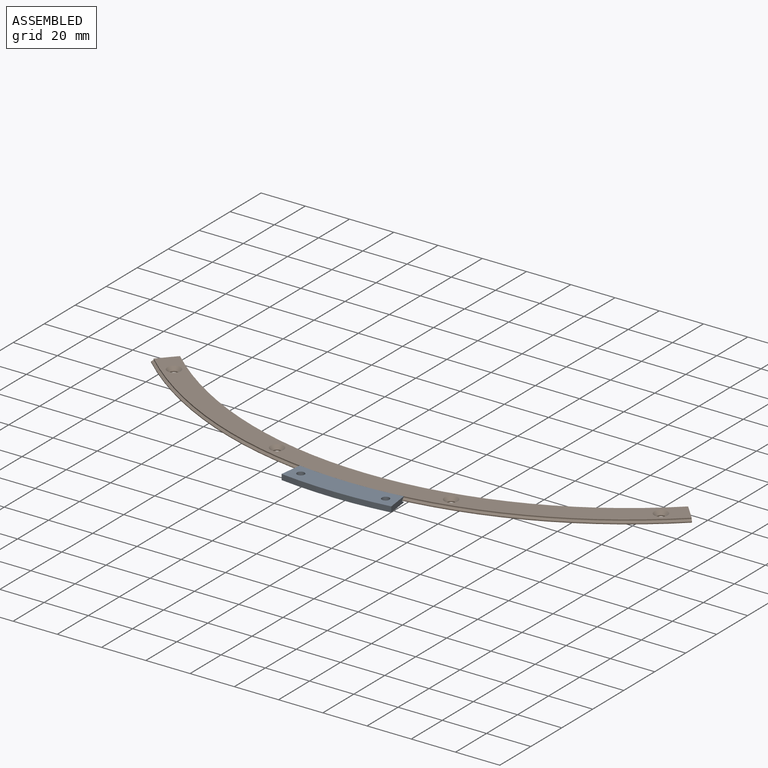
[diagram: assembled view]
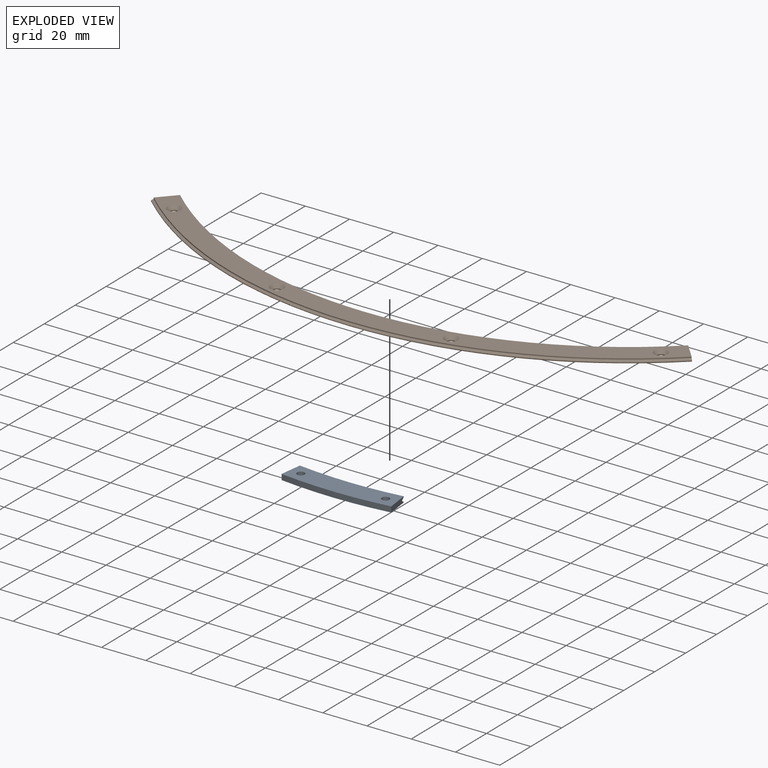
[diagram: exploded view]
GUIDED TOUR — FREECAD ASSEMBLY "Scale"

This assembly has 2 components, labeled P0..P1 below (a component is one placed body or linked part; the same part can appear more than once), held together by 0 modeled joints plus 1 derived contact edge. A joint is a constraint between two components; its type names the relative motion it leaves free:
  CONTACT — a derived adjacency edge — the two components touch in the source model (clearance under 2% of the assembly's diagonal); it is measured from the geometry, not a modeled constraint.
Axis/direction vectors are unit vectors and 'through' points are millimeter coordinates, both in the assembly's world frame.

MATES
  1. CONTACT "contact_0_1": P0 <-> P1, contact direction (0.000, 0.000, 1.000) through (0.00, -180.00, 2.00) mm (derived from contact, not a modeled constraint)

ASSEMBLY ORDER
  1. P0 — the base component [order verified]
  2. P1 [order verified]
Order-tag legend:
  [order verified] — this step's position reverses a verified removal order: the component was checked to insert without passing through the ones already placed.

Of the 2 components, 2 carry a construction recipe — the FreeCAD feature program (sketches with constraints, then the solid features that consume them) that regenerates the part from scratch, quoted from this document or from the linked companion document it references; the rest are supplied as boundary geometry only. The tour below walks the components in assembly order: each is shown spotlighted twice — in the assembled view, then in the exploded view, where a leader line traces a displaced component back to its assembled socket (components that stay in place when exploded have no leader line; saturated green if recipe-attached, orange if geometry-only; every other component desaturated gray) — followed by its recipe or geometry summary and the mates that hold it.
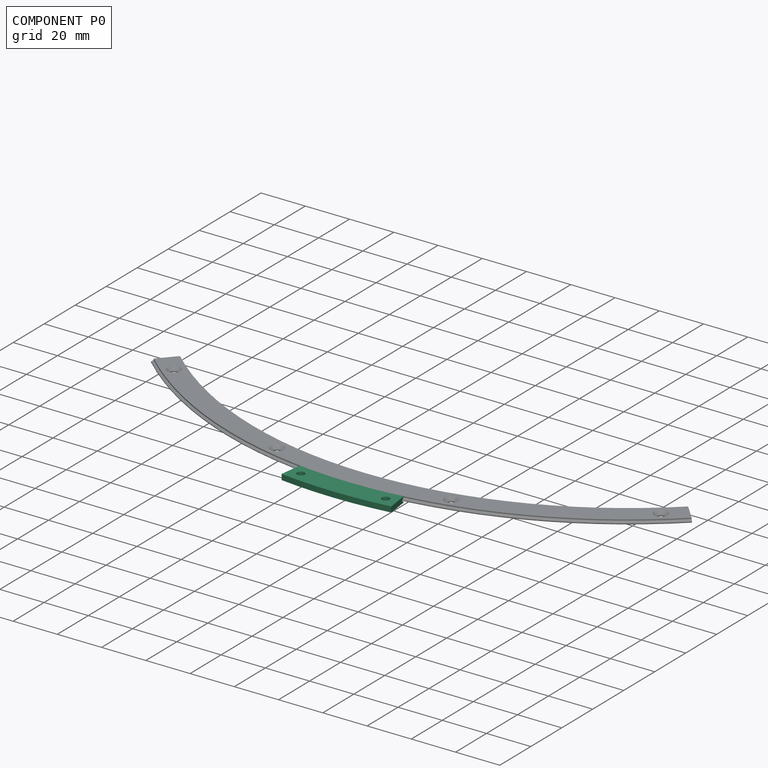
[diagram: component P0 — assembled]
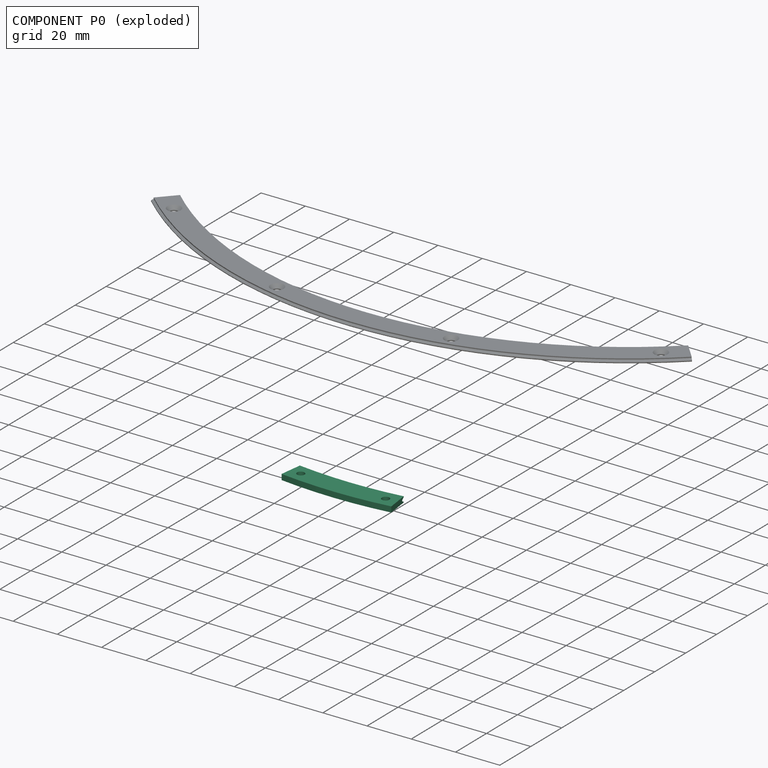
[diagram: component P0 — exploded]
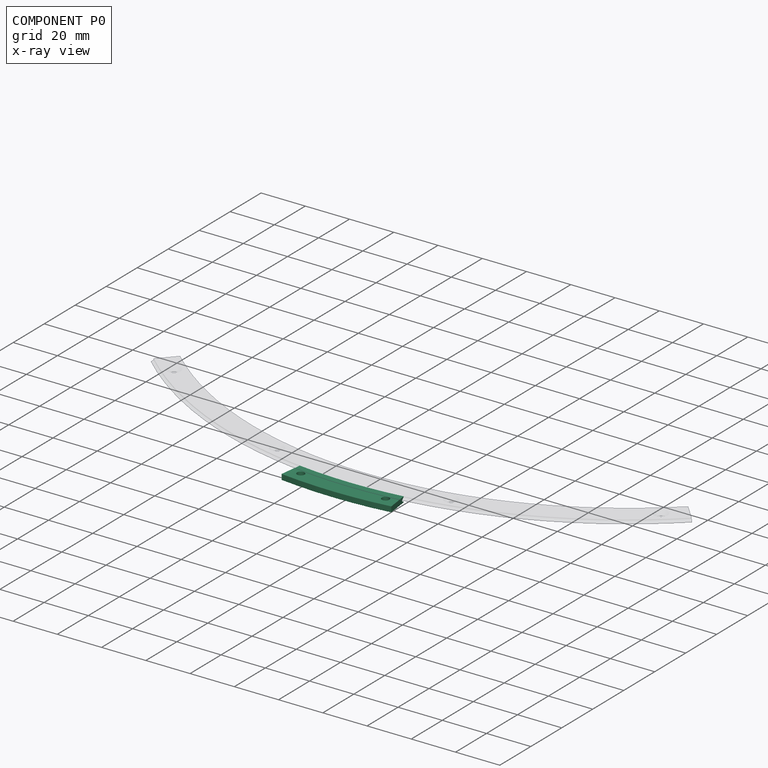
[diagram: component P0 — x-ray view]
COMPONENT P0 — recipe-attached ("VernierScale", modeled in this document).
Held by: resting contact with P1 (derived edge).
Construction recipe (the document's own serialized feature program — sketch geometry with constraints, then the solid features built on it; lengths are millimeters unless a unit is written):

FEATURE [PartDesign::Plane] DatumPlane  label="Plane_Bottom"
  AttachmentOffset = pos=(0,0,-0.5) rot=(0,0,1;0rad)
  AttachmentSupport = -> [XY_Plane]
  Length = 60
  MapMode = 5
  Placement = pos=(0,0,-0.5) rot=(0,0,1;0rad)
  ResizeMode = 0
  Width = 60
FEATURE [Sketcher::SketchObject] Sketch004
  ArcFitTolerance = 0
  AttachmentSupport = -> [DatumPlane]
  FullyConstrained = true
  MakeInternals = false
  MapMode = 5
  Placement = pos=(0,0,-0.5) rot=(0,0,1;0rad)
  expr: Constraints[11] = <<Dimensions>>.scale_outer_radius
  expr: Constraints[6] = <<Dimensions>>.vernier_scale_width
  expr: Constraints[7] = <<Dimensions>>.vernier_scale_angle
  sketch-geometry (4):
    g0: ArcOfCircle CenterX=-2.36e-14 CenterY=0 CenterZ=0 NormalX=0 NormalY=0 NormalZ=1 AngleXU=0 Radius=180 StartAngle=4.58149 EndAngle=4.84329
    g1: ArcOfCircle CenterX=-2.36e-14 CenterY=0 CenterZ=0 NormalX=0 NormalY=0 NormalZ=1 AngleXU=0 Radius=190 StartAngle=4.58149 EndAngle=4.84329
    g2: LineSegment StartX=-23.4947 StartY=-178.46 StartZ=0 EndX=-24.8 EndY=-188.375 EndZ=0
    g3: LineSegment StartX=23.4947 StartY=-178.46 StartZ=0 EndX=24.8 EndY=-188.375 EndZ=0
  constraints (12):
    c: Coincident(g2,g0)
    c: Coincident(g2,g1)
    c: Coincident(g3,g0)
    c: Coincident(g3,g1)
    c: Perpendicular(g0,g2)
    c: Perpendicular(g0,g3)
    c: Distance(g2) = 10
    c: Angle(g1) = 0.261799
    c: Symmetric(g1,g1,g-2)
    c: Coincident(g0,g1)
    c: Coincident(g0,g-1)
    c: Radius(g0) = 180
FEATURE [PartDesign::Plane] DatumPlane001  label="Plane_Top"
  AttachmentOffset = pos=(0,0,2) rot=(0,0,1;0rad)
  AttachmentSupport = -> [XY_Plane]
  Length = 60
  MapMode = 5
  Placement = pos=(0,0,2) rot=(0,0,1;0rad)
  ResizeMode = 0
  Width = 60
  expr: .AttachmentOffset.Base.z = <<Dimensions>>.scale_thickness
FEATURE [PartDesign::Pad] Pad
  Direction = (0,0,1)
  Length = 2
  Length2 = 10
  Placement = pos=(0,0,-0.5) rot=(0,0,1;0rad)
  Profile = -> Sketch004
  ReferenceAxis = -> Sketch004 [N_Axis]
  Suppressed = false
  Type = 3
  UpToFace = -> DatumPlane001 [Plane]
  expr: Length = <<Dimensions>>.scale_thickness
FEATURE [Sketcher::SketchObject] Sketch005
  ArcFitTolerance = 0
  AttachmentSupport = -> [DatumPlane001]
  ExternalGeometry = -> [Sketch004]
  FullyConstrained = true
  MakeInternals = false
  MapMode = 5
  Placement = pos=(0,0,2) rot=(0,0,1;0rad)
  expr: Constraints[0] = <<Dimensions>>.scale_attachment_screw_diameter
  expr: Constraints[7] = <<Dimensions>>.vernier_scale_width / 2
  sketch-geometry (3):
    g0: Circle CenterX=-19.1818 CenterY=-184.003 CenterZ=0 NormalX=0 NormalY=0 NormalZ=1 AngleXU=0 Radius=1.5
    g1: Circle CenterX=19.1818 CenterY=-184.003 CenterZ=0 NormalX=0 NormalY=0 NormalZ=1 AngleXU=0 Radius=1.5
    g2: ArcOfCircle [constr] CenterX=-2.36e-14 CenterY=0 CenterZ=0 NormalX=0 NormalY=0 NormalZ=1 AngleXU=0 Radius=185 StartAngle=4.58149 EndAngle=4.84329
  constraints (8):
    c: Diameter(g1) = 3
    c: Equal(g0,g1)
    c: PointOnObject(g2,g-6)
    c: Symmetric(g-5,g-4,g2)
    c: Coincident(g2,g-5)
    c: PointOnObject(g0,g2)
    c: Symmetric(g0,g1,g-2)
    c: Distance(g0,g2) = 5
FEATURE [PartDesign::Hole] Hole001
  BaseFeature = -> Pad
  CustomThreadClearance = 0
  Depth = 25
  DepthType = 0
  Diameter = 3.4
  DrillForDepth = false
  DrillPoint = 1
  DrillPointAngle = 118
  HoleCutCountersinkAngle = 90
  HoleCutCustomValues = false
  HoleCutDepth = 0
  HoleCutDiameter = 6.1
  HoleCutType = 0
  ModelThread = false
  Placement = pos=(0,0,-0.5) rot=(0,0,1;0rad)
  Profile = -> Sketch005
  Suppressed = false
  Tapered = false
  TaperedAngle = 90
  ThreadClass = 0
  ThreadDepth = 25
  ThreadDepthType = 0
  ThreadDirection = 0
  ThreadFit = 0
  ThreadSize = 9
  ThreadType = 1
  Threaded = false
  UseCustomThreadClearance = false
FEATURE [Sketcher::SketchObject] Sketch007
  ArcFitTolerance = 0
  AttachmentSupport = -> [YZ_Plane]
  ExternalGeometry = -> [Sketch004,DatumPlane001]
  FullyConstrained = true
  MakeInternals = false
  MapMode = 5
  Placement = pos=(0,0,0) rot=(0.57735,0.57735,0.57735;2.0944rad)
  expr: Constraints[13] = 0.5 mm - <<Dimensions>>.clearance_loose_fit
  expr: Constraints[4] = 1.5 mm + 2 * <<Dimensions>>.clearance_loose_fit
  expr: Constraints[8] = 1 mm + <<Dimensions>>.clearance_loose_fit
  sketch-geometry (5):
    g0: LineSegment StartX=-180 StartY=-0.25 StartZ=0 EndX=-181.25 EndY=0.471688 EndZ=0
    g1: LineSegment StartX=-181.25 StartY=0.471688 StartZ=0 EndX=-181.25 EndY=1.02831 EndZ=0
    g2: LineSegment StartX=-181.25 StartY=1.02831 StartZ=0 EndX=-180 EndY=1.75 EndZ=0
    g3: LineSegment StartX=-180 StartY=-0.25 StartZ=0 EndX=-180 EndY=1.75 EndZ=0
    g4: GeomPoint [constr] X=-180 Y=2 Z=0
  constraints (14):
    c: Coincident(g1,g0)
    c: Coincident(g2,g1)
    c: Coincident(g3,g2)
    c: Vertical(g3)
    c: DistanceY(g3,g3) = 2
    c: Angle(g3,g0) = 1.0472
    c: Vertical(g1)
    c: Angle(g2,g3) = 1.0472
    c: DistanceX(g1,g2) = 1.25
    c: Coincident(g0,g3)
    c: PointOnObject(g-3,g3)
    c: PointOnObject(g4,g-4)
    c: Vertical(g4,g2)
    c: DistanceY(g2,g4) = 0.25
FEATURE [PartDesign::SubtractivePipe] SubtractivePipe
  AuxilleryCurvelinear = true
  AuxillerySpineTangent = false
  BaseFeature = -> Hole001
  Binormal = (0,0,0)
  Mode = 0
  Placement = pos=(0,0,-0.5) rot=(0,0,1;0rad)
  Profile = -> Sketch007
  Spine = -> Sketch004 [Edge2]
  SpineTangent = false
  Suppressed = false
  Transformation = 0
  Transition = 0
FEATURE [PartDesign::Body] Body  label="VernierScaleBody"
  AllowCompound = false
  Group = -> [DatumPlane001,DatumPlane,Sketch004,Pad,Sketch005,Hole001,Sketch007,SubtractivePipe]
  Origin = -> Origin
  Tip = -> SubtractivePipe
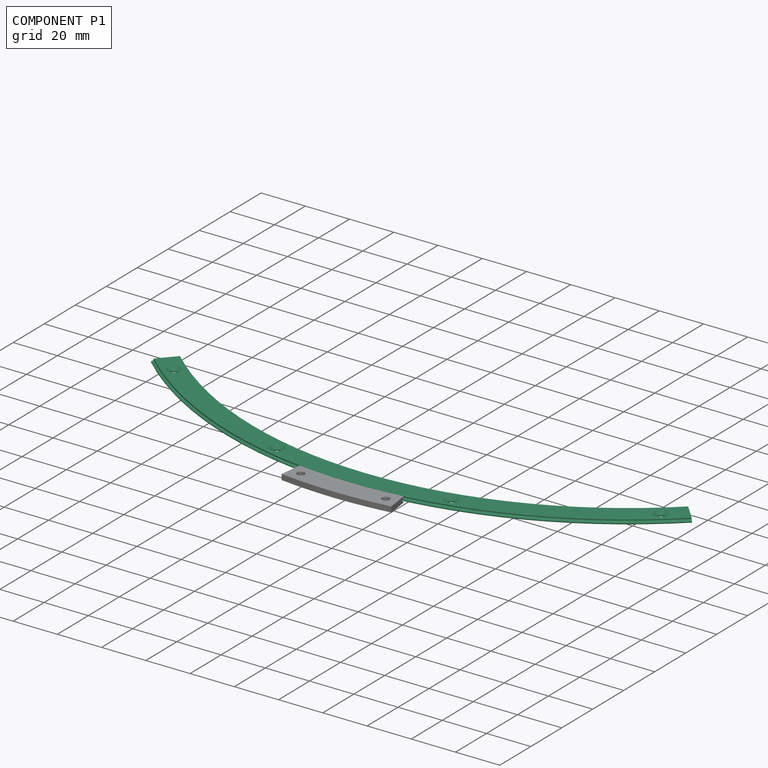
[diagram: component P1 — assembled]
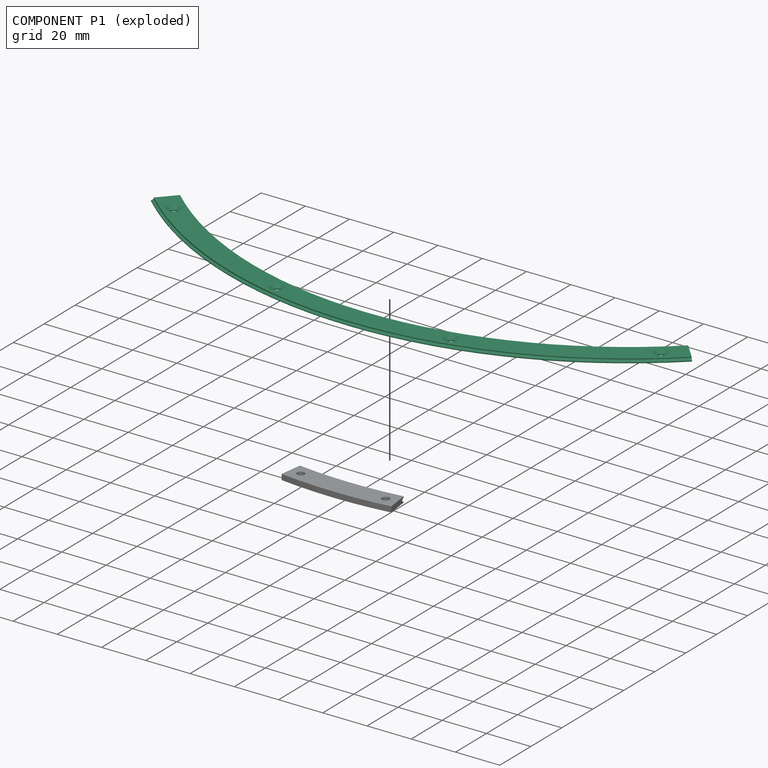
[diagram: component P1 — exploded]
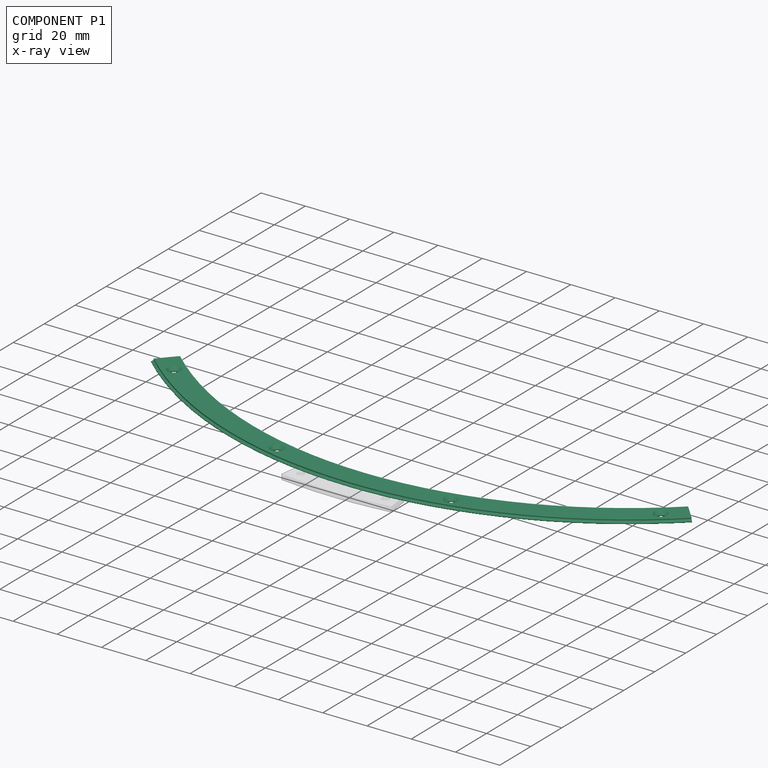
[diagram: component P1 — x-ray view]
COMPONENT P1 — recipe-attached ("MainScale", modeled in this document).
Held by: resting contact with P0 (derived edge).
Construction recipe (the document's own serialized feature program — sketch geometry with constraints, then the solid features built on it; lengths are millimeters unless a unit is written):

FEATURE [Sketcher::SketchObject] Sketch003
  ArcFitTolerance = 0
  AttachmentSupport = -> [XY_Plane009]
  FullyConstrained = true
  MakeInternals = false
  MapMode = 5
  expr: Constraints[6] = <<Dimensions>>.scale_width
  expr: Constraints[7] = <<Dimensions>>.scale_outer_radius
  expr: Constraints[8] = <<Dimensions>>.scale_angle + 2 * <<Dimensions>>.scale_extra_angle
  expr: Constraints[9] = <<Dimensions>>.scale_angle + 2 * <<Dimensions>>.scale_extra_angle
  sketch-geometry (4):
    g0: ArcOfCircle CenterX=1.5e-15 CenterY=0 CenterZ=0 NormalX=0 NormalY=0 NormalZ=1 AngleXU=0 Radius=180 StartAngle=3.97062 EndAngle=5.45415
    g1: LineSegment StartX=-121.606 StartY=-132.71 StartZ=0 EndX=-114.85 EndY=-125.337 EndZ=0
    g2: ArcOfCircle CenterX=-1.3e-15 CenterY=0 CenterZ=0 NormalX=0 NormalY=0 NormalZ=1 AngleXU=0 Radius=170 StartAngle=3.97062 EndAngle=5.45415
    g3: LineSegment StartX=114.85 StartY=-125.337 StartZ=0 EndX=121.606 EndY=-132.71 EndZ=0
  constraints (12):
    c: Coincident(g1,g0)
    c: Coincident(g2,g1)
    c: Coincident(g3,g2)
    c: Coincident(g3,g0)
    c: Symmetric(g2,g1,g-2)
    c: Symmetric(g0,g0,g-2)
    c: Distance(g1) = 10
    c: Radius(g0) = 180
    c: Angle(g2) = 1.48353
    c: Angle(g0) = 1.48353
    c: PointOnObject(g0,g-1)
    c: PointOnObject(g2,g-1)
FEATURE [PartDesign::Pad] Pad002
  Direction = (0,0,1)
  Length = 2
  Length2 = 10
  Profile = -> Sketch003
  ReferenceAxis = -> Sketch003 [N_Axis]
  Suppressed = false
  Type = 0
  expr: Length = <<Dimensions>>.scale_thickness
FEATURE [Sketcher::SketchObject] Sketch  label="AttachmentHoles"
  ArcFitTolerance = 0
  AttachmentOffset = pos=(0,0,2) rot=(0,0,1;0rad)
  AttachmentSupport = -> [XY_Plane009]
  FullyConstrained = true
  MakeInternals = false
  MapMode = 5
  Placement = pos=(0,0,2) rot=(0,0,1;0rad)
  expr: .AttachmentOffset.Base.z = <<Dimensions>>.scale_thickness
  expr: Constraints[11] = <<Dimensions>>.scale_angle / 2
  expr: Constraints[12] = <<Dimensions>>.scale_attachment_screw_head_diameter / 2 + 2 mm
  expr: Constraints[2] = <<Dimensions>>.scale_attachment_screw_diameter
  expr: Constraints[8] = <<Dimensions>>.scale_outer_radius - <<Dimensions>>.scale_width / 2
  sketch-geometry (12):
    g0: Circle CenterX=-110.068 CenterY=-136.052 CenterZ=0 NormalX=0 NormalY=0 NormalZ=1 AngleXU=0 Radius=1.5
    g1: Circle CenterX=110.068 CenterY=-136.052 CenterZ=0 NormalX=0 NormalY=0 NormalZ=1 AngleXU=0 Radius=1.5
    g2: LineSegment [constr] StartX=0 StartY=0 StartZ=0 EndX=0 EndY=-175 EndZ=0
    g3: LineSegment [constr] StartX=0 StartY=0 StartZ=0 EndX=-106.533 EndY=-138.837 EndZ=0
    g4: LineSegment [constr] StartX=0 StartY=0 StartZ=0 EndX=-110.068 EndY=-136.052 EndZ=0
    g5: Circle CenterX=-39.34 CenterY=-170.521 CenterZ=0 NormalX=0 NormalY=0 NormalZ=1 AngleXU=0 Radius=1.5
    g6: Circle CenterX=39.34 CenterY=-170.521 CenterZ=0 NormalX=0 NormalY=0 NormalZ=1 AngleXU=0 Radius=1.5
    g7: LineSegment [constr] StartX=-39.34 StartY=-170.521 StartZ=0 EndX=0 EndY=0 EndZ=0
    g8: LineSegment [constr] StartX=39.34 StartY=-170.521 StartZ=0 EndX=0 EndY=0 EndZ=0
    g9: LineSegment [constr] StartX=-110.068 StartY=-136.052 StartZ=0 EndX=-39.34 EndY=-170.521 EndZ=0
    g10: LineSegment [constr] StartX=-39.34 StartY=-170.521 StartZ=0 EndX=39.34 EndY=-170.521 EndZ=0
    g11: LineSegment [constr] StartX=39.34 StartY=-170.521 StartZ=0 EndX=110.068 EndY=-136.052 EndZ=0
  constraints (29):
    c: Symmetric(g1,g0,g-2)
    c: Equal(g0,g1)
    c: Diameter(g0) = 3
    c: Coincident(g2,g-1)
    c: PointOnObject(g2,g-2)
    c: Coincident(g3,g2)
    c: Coincident(g4,g2)
    c: Coincident(g4,g0)
    c: Distance(g2) = 175
    c: Equal(g3,g2)
    c: Equal(g4,g2)
    c: Angle(g3,g2) = 0.654498
    c: Distance(g0,g3) = 4.5
    c: Equal(g5,g6)
    c: Equal(g6,g0)
    c: Coincident(g7,g5)
    c: Coincident(g8,g6)
    c: Coincident(g7,g2)
    c: Coincident(g2,g8)
    c: Equal(g4,g7)
    c: Equal(g7,g8)
    c: Coincident(g9,g0)
    c: Coincident(g9,g5)
    c: Coincident(g10,g5)
    c: Coincident(g10,g6)
    c: Horizontal(g10)
    c: Coincident(g11,g6)
    c: Coincident(g11,g1)
    c: Equal(g9,g10)
FEATURE [PartDesign::Hole] Hole
  BaseFeature = -> Pad002
  CustomThreadClearance = 0
  Depth = 471.953
  DepthType = 1
  Diameter = 3.2
  DrillForDepth = false
  DrillPoint = 1
  DrillPointAngle = 118
  HoleCutCountersinkAngle = 90
  HoleCutCustomValues = false
  HoleCutDepth = 0
  HoleCutDiameter = 6.1
  HoleCutType = 2
  ModelThread = false
  Profile = -> Sketch
  Suppressed = false
  Tapered = false
  TaperedAngle = 90
  ThreadClass = 0
  ThreadDepth = 471.953
  ThreadDepthType = 0
  ThreadDirection = 0
  ThreadFit = 1
  ThreadSize = 9
  ThreadType = 2
  Threaded = false
  UseCustomThreadClearance = false
FEATURE [Sketcher::SketchObject] Sketch006
  ArcFitTolerance = 0
  AttachmentSupport = -> [YZ_Plane009]
  ExternalGeometry = -> [Sketch003]
  FullyConstrained = true
  MakeInternals = false
  MapMode = 5
  Placement = pos=(0,0,0) rot=(0.57735,0.57735,0.57735;2.0944rad)
  sketch-geometry (4):
    g0: LineSegment StartX=-181 StartY=0.92265 StartZ=0 EndX=-180 EndY=1.5 EndZ=0
    g1: LineSegment StartX=-180 StartY=1.5 StartZ=0 EndX=-180 EndY=-5e-14 EndZ=0
    g2: LineSegment StartX=-180 StartY=-5e-14 StartZ=0 EndX=-181 EndY=0.57735 EndZ=0
    g3: LineSegment StartX=-181 StartY=0.57735 StartZ=0 EndX=-181 EndY=0.92265 EndZ=0
  constraints (11):
    c: Coincident(g0,g1)
    c: Coincident(g1,g2)
    c: Coincident(g2,g3)
    c: Coincident(g3,g0)
    c: Vertical(g1)
    c: Vertical(g3)
    c: Coincident(g1,g-3)
    c: Distance(g1) = 1.5
    c: DistanceX(g0,g0) = 1
    c: Equal(g0,g2)
    c: Angle(g1,g2) = 1.0472
FEATURE [PartDesign::AdditivePipe] AdditivePipe
  AuxilleryCurvelinear = true
  AuxillerySpineTangent = false
  BaseFeature = -> Hole
  Binormal = (0,0,0)
  Mode = 0
  Profile = -> Sketch006
  Spine = -> Sketch003 [Edge1]
  SpineTangent = false
  Suppressed = false
  Transformation = 0
  Transition = 0
FEATURE [PartDesign::Body] Body003  label="MainScaleBody"
  AllowCompound = false
  Group = -> [Sketch003,Pad002,Sketch,Hole,Sketch006,AdditivePipe]
  Origin = -> Origin009
  Tip = -> AdditivePipe
PROVENANCE & LICENSES
Assembly and component geometry: a FreeCAD (.FCStd) document from a public repository crawl; components, placements and joints were extracted with FreeCAD and each solid tessellated.
Construction recipes: the document's own serialized feature recipes (and, for linked parts, the recipes of companion documents from the same project).
License: gpl-3.0.
Joints: native FreeCAD joints and A2plus constraints are mapped to standard mate types; edges marked 'derived from contact' connect touching components and are measured from the geometry, not modeled.
Verification: 2 of this assembly's 2 components carry a construction recipe (2 from this document itself); the rest are geometry-only. Every component's tessellation passed the extraction mesh gates (mesh-volume checksum against the B-rep where available, bounding-box inflation <= 2%).
Renders: orthographic iso camera (az 35 / el 25); the floor grid conveys scale (grid pitch printed in each image; no ruler). In the exploded view each component is displaced by its stored offset vector: the offsets alone carry the explosion direction (mate normal/axis signs are not orientation cues and do not encode it), and separation distances are assigned per mate-chain, not proportionally to assembly-order depth.
